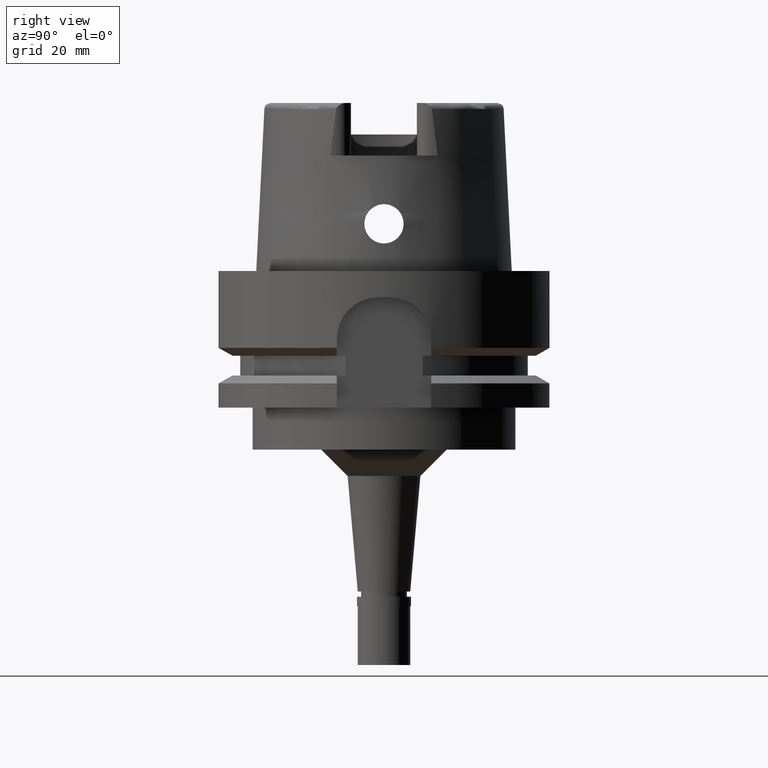
[diagram: clean part render]
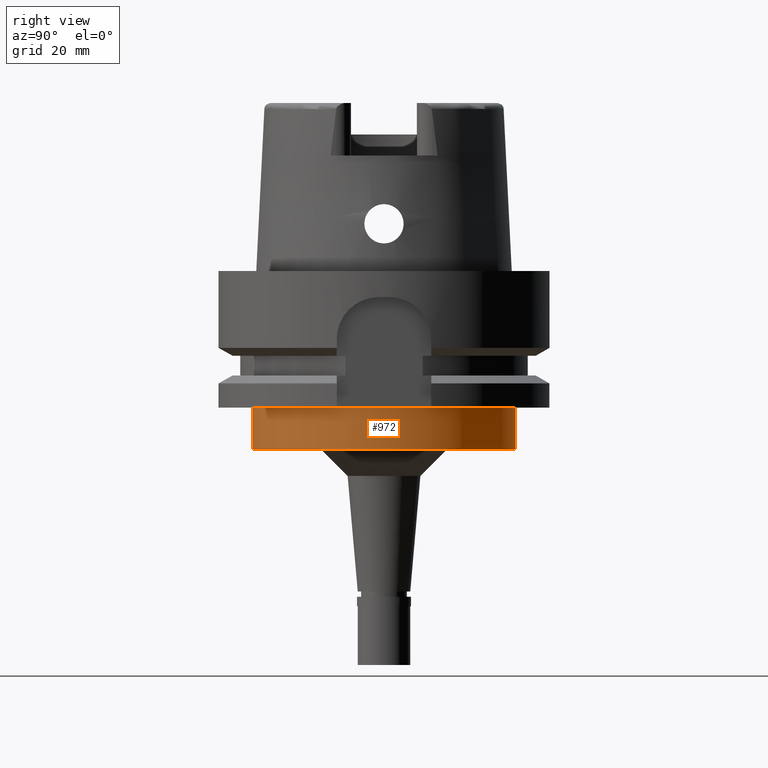
[diagram: same view with one face highlighted and labeled with its STEP entity id]
A machine part, right view. The second image highlights one B-rep face of the part: STEP entity #972.
In plain terms, the highlighted cylindrical surface (partial cylindrical patch) has radius 25 mm, axis along (0, 0, -1).
Its self-contained STEP definition (entity closure, byte-faithful):
#165 = VERTEX_POINT ( 'NONE', #2512 ) ;
#473 = DIRECTION ( 'NONE',  ( 0.0000000000000000000, 0.0000000000000000000, -1.000000000000000000 ) ) ;
#506 = ORIENTED_EDGE ( 'NONE', *, *, #543, .F. ) ;
#543 = EDGE_CURVE ( 'NONE', #165, #4156, #4869, .T. ) ;
#673 = VECTOR ( 'NONE', #473, 1000.000000000000000 ) ;
#681 = ORIENTED_EDGE ( 'NONE', *, *, #1335, .T. ) ;
#870 = CARTESIAN_POINT ( 'NONE',  ( 0.0000000000000000000, -25.00000000000000000, -26.00000000000000000 ) ) ;
#897 = LINE ( 'NONE', #870, #673 ) ;
#972 = ADVANCED_FACE ( 'NONE', ( #4258 ), #5147, .T. ) ;
#1163 = DIRECTION ( 'NONE',  ( 0.0000000000000000000, 0.0000000000000000000, 1.000000000000000000 ) ) ;
#1191 = DIRECTION ( 'NONE',  ( 0.0000000000000000000, -1.000000000000000000, 0.0000000000000000000 ) ) ;
#1217 = CARTESIAN_POINT ( 'NONE',  ( 0.0000000000000000000, -25.00000000000000000, -34.00000000000000000 ) ) ;
#1251 = DIRECTION ( 'NONE',  ( 0.0000000000000000000, -1.000000000000000000, 0.0000000000000000000 ) ) ;
#1335 = EDGE_CURVE ( 'NONE', #4875, #3435, #897, .T. ) ;
#1470 = CIRCLE ( 'NONE', #4913, 25.00000000000000000 ) ;
#1519 = CARTESIAN_POINT ( 'NONE',  ( 0.0000000000000000000, 25.00000000000000000, -34.00000000000000000 ) ) ;
#1701 = DIRECTION ( 'NONE',  ( 0.0000000000000000000, 0.0000000000000000000, -1.000000000000000000 ) ) ;
#1864 = CARTESIAN_POINT ( 'NONE',  ( 0.0000000000000000000, 1.679786782049999636E-14, -26.00000000000000000 ) ) ;
#1928 = EDGE_CURVE ( 'NONE', #165, #4875, #1470, .T. ) ;
#2101 = CARTESIAN_POINT ( 'NONE',  ( 0.0000000000000000000, 1.679786782049999636E-14, 37.16499999999999915 ) ) ;
#2512 = CARTESIAN_POINT ( 'NONE',  ( 0.0000000000000000000, 25.00000000000000000, -26.00000000000000000 ) ) ;
#2561 = ORIENTED_EDGE ( 'NONE', *, *, #4058, .T. ) ;
#2588 = AXIS2_PLACEMENT_3D ( 'NONE', #2101, #1701, #1251 ) ;
#2695 = DIRECTION ( 'NONE',  ( 0.0000000000000000000, 0.0000000000000000000, -1.000000000000000000 ) ) ;
#3435 = VERTEX_POINT ( 'NONE', #1217 ) ;
#3676 = CARTESIAN_POINT ( 'NONE',  ( 0.0000000000000000000, 25.00000000000000000, -26.00000000000000000 ) ) ;
#3865 = CARTESIAN_POINT ( 'NONE',  ( 0.0000000000000000000, 1.679786782049999636E-14, -34.00000000000000000 ) ) ;
#4058 = EDGE_CURVE ( 'NONE', #3435, #4156, #4464, .T. ) ;
#4156 = VERTEX_POINT ( 'NONE', #1519 ) ;
#4258 = FACE_OUTER_BOUND ( 'NONE', #5350, .T. ) ;
#4428 = DIRECTION ( 'NONE',  ( 0.0000000000000000000, 1.000000000000000000, 0.0000000000000000000 ) ) ;
#4435 = DIRECTION ( 'NONE',  ( 0.0000000000000000000, 0.0000000000000000000, -1.000000000000000000 ) ) ;
#4464 = CIRCLE ( 'NONE', #5573, 25.00000000000000000 ) ;
#4869 = LINE ( 'NONE', #3676, #5585 ) ;
#4875 = VERTEX_POINT ( 'NONE', #5367 ) ;
#4913 = AXIS2_PLACEMENT_3D ( 'NONE', #1864, #2695, #4428 ) ;
#5147 = CYLINDRICAL_SURFACE ( 'NONE', #2588, 25.00000000000000000 ) ;
#5280 = ORIENTED_EDGE ( 'NONE', *, *, #1928, .T. ) ;
#5350 = EDGE_LOOP ( 'NONE', ( #5280, #681, #2561, #506 ) ) ;
#5367 = CARTESIAN_POINT ( 'NONE',  ( 0.0000000000000000000, -25.00000000000000000, -26.00000000000000000 ) ) ;
#5573 = AXIS2_PLACEMENT_3D ( 'NONE', #3865, #1163, #1191 ) ;
#5585 = VECTOR ( 'NONE', #4435, 1000.000000000000000 ) ;